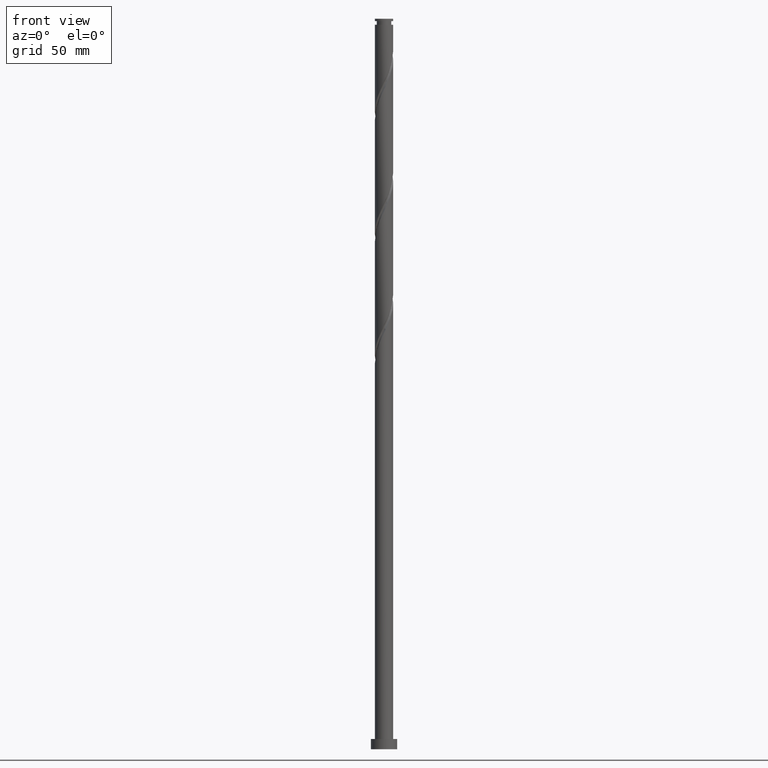
[diagram: clean part render]
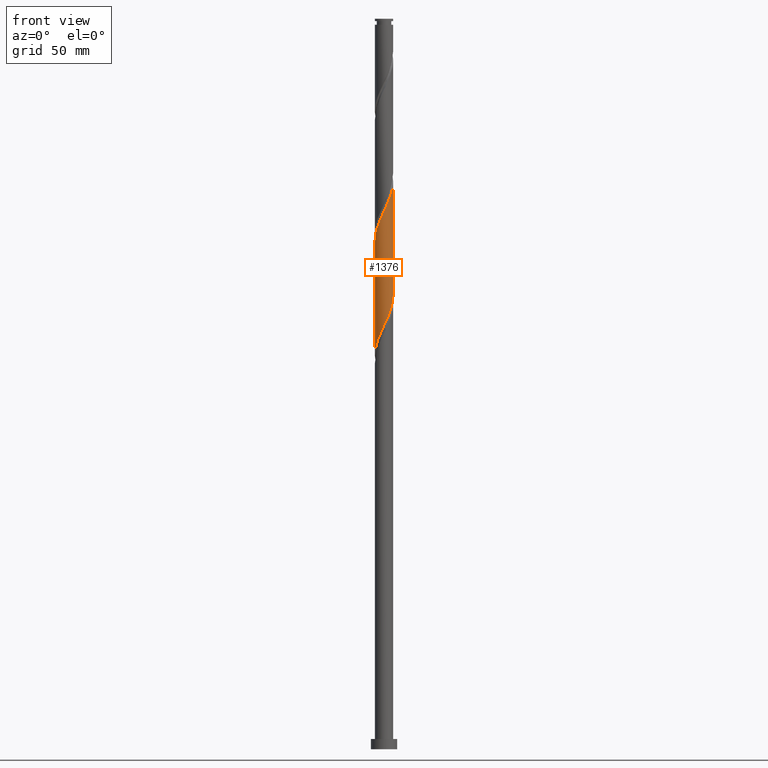
[diagram: same view with one face highlighted and labeled with its STEP entity id]
A machine part, front view. The second image highlights one B-rep face of the part: STEP entity #1376.
In plain terms, the highlighted cylindrical surface (edge-blend (fillet) strip) has radius 6.25 mm, axis along (-0, -0, -1).
Its self-contained STEP definition (entity closure, byte-faithful):
#36 = CARTESIAN_POINT ( 'NONE',  ( -6.250000000000009770, 7.460911258558398260E-15, 347.3798269158335188 ) ) ;
#50 = CARTESIAN_POINT ( 'NONE',  ( 2.368740404023878643, -5.783733128209219920, 295.3491905604970498 ) ) ;
#61 = CARTESIAN_POINT ( 'NONE',  ( 6.125000000000000000, -1.243734296383280258, 308.3700238938303642 ) ) ;
#80 = CARTESIAN_POINT ( 'NONE',  ( -6.125000000000008882, -1.243734296383279592, 350.0366905604970498 ) ) ;
#92 = CARTESIAN_POINT ( 'NONE',  ( -1.194875362925339690, -6.134718646121773311, 365.6616905604970498 ) ) ;
#183 = AXIS2_PLACEMENT_3D ( 'NONE', #384, #1703, #908 ) ;
#212 = CARTESIAN_POINT ( 'NONE',  ( 2.938388396464525876, -5.550432561628093175, 296.6512738938303642 ) ) ;
#221 = CARTESIAN_POINT ( 'NONE',  ( 5.550432561628096728, -2.938388396464535202, 382.5887738938303642 ) ) ;
#236 = CARTESIAN_POINT ( 'NONE',  ( -5.550432561628093175, -2.938388396464526764, 275.8179405604970498 ) ) ;
#242 = CARTESIAN_POINT ( 'NONE',  ( -5.182805627141505944, -3.492996683547016534, 355.2450238938303642 ) ) ;
#264 = CARTESIAN_POINT ( 'NONE',  ( 3.492996683547016090, -5.182805627141505944, 376.0783572271636785 ) ) ;
#315 = VECTOR ( 'NONE', #942, 1000.000000000000000 ) ;
#369 = CARTESIAN_POINT ( 'NONE',  ( 3.451576079800706687, -5.210481989734500274, 297.9533572271637354 ) ) ;
#384 = CARTESIAN_POINT ( 'NONE',  ( 0.000000000000000000, 0.000000000000000000, 500.0000000000000000 ) ) ;
#393 = CARTESIAN_POINT ( 'NONE',  ( -1.846994141945911716, -6.002502863745775130, 286.2346072271637922 ) ) ;
#420 = CARTESIAN_POINT ( 'NONE',  ( 6.250000000000008882, 7.878409165607379030E-15, 389.0464935825002044 ) ) ;
#421 = ORIENTED_EDGE ( 'NONE', *, *, #654, .T. ) ;
#429 = CARTESIAN_POINT ( 'NONE',  ( 4.436994950466251808, -4.401769622496967571, 378.6825238938303642 ) ) ;
#444 = CARTESIAN_POINT ( 'NONE',  ( -6.134718646121763541, -1.194875362925336137, 271.9116905604970498 ) ) ;
#465 = VERTEX_POINT ( 'NONE', #1397 ) ;
#482 = CARTESIAN_POINT ( 'NONE',  ( -6.250000000000009770, 7.460911258558398260E-15, 347.3798269158335188 ) ) ;
#505 = ORIENTED_EDGE ( 'NONE', *, *, #721, .F. ) ;
#548 = CARTESIAN_POINT ( 'NONE',  ( -0.02490806827660287104, -6.249950366853703088, 290.1408572271636785 ) ) ;
#569 = CARTESIAN_POINT ( 'NONE',  ( -4.870531417840910038, -3.964763763136889274, 278.4221072271637354 ) ) ;
#576 = CARTESIAN_POINT ( 'NONE',  ( -0.5906583142674434184, -6.252403597453189299, 366.9637738938305347 ) ) ;
#587 = CARTESIAN_POINT ( 'NONE',  ( -5.526835772425973126, -2.982534884002440823, 353.9429405604971066 ) ) ;
#600 = CARTESIAN_POINT ( 'NONE',  ( -4.436994950466247367, -4.401769622496961354, 279.7241905604970498 ) ) ;
#637 = CARTESIAN_POINT ( 'NONE',  ( -4.003458483091587361, -4.838775481857032545, 281.0262738938304210 ) ) ;
#654 = EDGE_CURVE ( 'NONE', #1277, #756, #1987, .T. ) ;
#681 = CARTESIAN_POINT ( 'NONE',  ( -6.250000000000007994, -0.01245408358914291795, 347.4061804703507619 ) ) ;
#686 = CARTESIAN_POINT ( 'NONE',  ( 5.764669318085869243, -2.414764512974176380, 305.7658572271637922 ) ) ;
#698 = CARTESIAN_POINT ( 'NONE',  ( 1.799092411583232298, -6.017033694790346665, 294.0471072271637354 ) ) ;
#705 = CARTESIAN_POINT ( 'NONE',  ( 2.414764512974176824, -5.764669318085877237, 373.4741905604970498 ) ) ;
#709 = CARTESIAN_POINT ( 'NONE',  ( 6.002502863745776018, -1.846994141945909940, 307.0679405604970498 ) ) ;
#721 = EDGE_CURVE ( 'NONE', #1277, #465, #1353, .T. ) ;
#731 = CARTESIAN_POINT ( 'NONE',  ( 5.210481989734503827, -3.451576079800713792, 381.2866905604970498 ) ) ;
#742 = CARTESIAN_POINT ( 'NONE',  ( 6.250000000000012434, -0.6029988433061194142, 387.7705134770844211 ) ) ;
#753 = CARTESIAN_POINT ( 'NONE',  ( -4.838775481857040539, -4.003458483091592690, 356.5471072271637922 ) ) ;
#756 = VERTEX_POINT ( 'NONE', #1857 ) ;
#783 = CARTESIAN_POINT ( 'NONE',  ( 6.250000000000000000, 7.654042494670957606E-16, 500.0000000000000000 ) ) ;
#803 = CARTESIAN_POINT ( 'NONE',  ( -2.982534884002439490, -5.526835772425963356, 283.6304405604971635 ) ) ;
#819 = CARTESIAN_POINT ( 'NONE',  ( -6.250000000000000000, 0.000000000000000000, 500.0000000000000000 ) ) ;
#852 = CARTESIAN_POINT ( 'NONE',  ( 5.182805627141495286, -3.492996683547016090, 303.1616905604970498 ) ) ;
#868 = FACE_OUTER_BOUND ( 'NONE', #1906, .T. ) ;
#872 = CARTESIAN_POINT ( 'NONE',  ( 1.243734296383278926, -6.125000000000008882, 370.8700238938303642 ) ) ;
#876 = CARTESIAN_POINT ( 'NONE',  ( 6.250000000000000888, -0.01245408358914403164, 311.0005339839765952 ) ) ;
#893 = CARTESIAN_POINT ( 'NONE',  ( 0.6404744508206466902, -6.247497136254231975, 369.5679405604970498 ) ) ;
#908 = DIRECTION ( 'NONE',  ( -1.000000000000000000, 0.000000000000000000, 0.000000000000000000 ) ) ;
#911 = CARTESIAN_POINT ( 'NONE',  ( -6.002502863745784900, -1.846994141945912382, 351.3387738938304778 ) ) ;
#942 = DIRECTION ( 'NONE',  ( -0.000000000000000000, -0.000000000000000000, -1.000000000000000000 ) ) ;
#1042 = CARTESIAN_POINT ( 'NONE',  ( -2.414764512974176380, -5.764669318085871019, 284.9325238938303642 ) ) ;
#1066 = CARTESIAN_POINT ( 'NONE',  ( -5.783733128209219920, -2.368740404023878643, 274.5158572271637354 ) ) ;
#1175 = DIRECTION ( 'NONE',  ( -0.000000000000000000, -0.000000000000000000, -1.000000000000000000 ) ) ;
#1199 = CARTESIAN_POINT ( 'NONE',  ( 1.194875362925335915, -6.134718646121764429, 292.7450238938303642 ) ) ;
#1238 = CARTESIAN_POINT ( 'NONE',  ( -2.368740404023883084, -5.783733128209227026, 363.0575238938303642 ) ) ;
#1242 = CARTESIAN_POINT ( 'NONE',  ( -6.017033694790346665, -1.799092411583232520, 273.2137738938304210 ) ) ;
#1256 = LINE ( 'NONE', #783, #315 ) ;
#1268 = VERTEX_POINT ( 'NONE', #1343 ) ;
#1277 = VERTEX_POINT ( 'NONE', #482 ) ;
#1334 = CARTESIAN_POINT ( 'NONE',  ( -6.249950366853710193, -0.02490806827660202449, 347.4325238938303642 ) ) ;
#1338 = CARTESIAN_POINT ( 'NONE',  ( 4.838775481857031657, -4.003458483091587361, 301.8596072271638491 ) ) ;
#1343 = CARTESIAN_POINT ( 'NONE',  ( 6.250000000000001776, 6.297881374636269097E-15, 311.0268875384938951 ) ) ;
#1353 =( BOUNDED_CURVE ( )  B_SPLINE_CURVE ( 2, ( #36, #681, #1334, #1544, #80, #911, #1847, #587, #242, #753, #1555, #1715, #1888, #1676, #1238, #2008, #92, #576, #1877, #893, #872, #2033, #705, #1398, #264, #2051, #429, #1531, #731, #221, #1522, #2021, #2042, #742, #420 ),
 .UNSPECIFIED., .F., .T. ) 
 B_SPLINE_CURVE_WITH_KNOTS ( ( 3, 2, 2, 2, 2, 2, 2, 2, 2, 2, 2, 2, 2, 2, 2, 2, 2, 3 ),
 ( 0.3045286902180873723, 0.3046875000000000000, 0.3125000000000000000, 0.3203125000000000000, 0.3281250000000000000, 0.3359375000000000000, 0.3437500000000000000, 0.3515625000000000000, 0.3593750000000000000, 0.3671875000000000000, 0.3750000000000000000, 0.3828125000000000000, 0.3906250000000000000, 0.3984375000000000000, 0.4062500000000000000, 0.4140625000000000000, 0.4218750000000000000, 0.4295286902180874278 ),
 .UNSPECIFIED. ) 
 CURVE ( )  GEOMETRIC_REPRESENTATION_ITEM ( )  RATIONAL_B_SPLINE_CURVE ( ( 0.9089165573359504480, 0.9090019243628550960, 0.9090909090909468082, 0.9047133878838528043, 0.9090909090909468082, 0.9047133878838528043, 0.9090909090909468082, 0.9047133878838528043, 0.9090909090909468082, 0.9047133878838528043, 0.9090909090909468082, 0.9047133878838528043, 0.9090909090909468082, 0.9047133878838528043, 0.9090909090909468082, 0.9047133878838528043, 0.9090909090909468082, 0.9047133878838528043, 0.9090909090909468082, 0.9047133878838528043, 0.9090909090909468082, 0.9047133878838528043, 0.9090909090909468082, 0.9047133878838528043, 0.9090909090909468082, 0.9047133878838528043, 0.9090909090909468082, 0.9047133878838528043, 0.9090909090909468082, 0.9047133878838528043, 0.9090909090909468082, 0.9047133878838528043, 0.9090909090909468082, 0.9048023726119445165, 0.9089165573359504480 ) ) 
 REPRESENTATION_ITEM ( '' )  );
#1361 = CARTESIAN_POINT ( 'NONE',  ( 3.964763763136884833, -4.870531417840912702, 299.2554405604971066 ) ) ;
#1368 = VECTOR ( 'NONE', #1175, 1000.000000000000000 ) ;
#1376 = ADVANCED_FACE ( 'NONE', ( #868 ), #1517, .T. ) ;
#1384 = CARTESIAN_POINT ( 'NONE',  ( -6.250000000000008882, -0.6029988433061029829, 270.6362009772433339 ) ) ;
#1397 = CARTESIAN_POINT ( 'NONE',  ( 6.250000000000008882, 7.878409165607379030E-15, 389.0464935825002044 ) ) ;
#1398 = CARTESIAN_POINT ( 'NONE',  ( 2.982534884002440823, -5.526835772425973126, 374.7762738938303642 ) ) ;
#1421 = ORIENTED_EDGE ( 'NONE', *, *, #1970, .F. ) ;
#1452 = CARTESIAN_POINT ( 'NONE',  ( -3.492996683547012982, -5.182805627141497062, 282.3283572271638491 ) ) ;
#1517 = CYLINDRICAL_SURFACE ( 'NONE', #183, 6.250000000000000000 ) ;
#1522 = CARTESIAN_POINT ( 'NONE',  ( 5.783733128209226138, -2.368740404023883084, 383.8908572271637354 ) ) ;
#1525 = CARTESIAN_POINT ( 'NONE',  ( 6.249950366853703088, -0.02490806827660308961, 310.9741905604970498 ) ) ;
#1531 = CARTESIAN_POINT ( 'NONE',  ( 4.870531417840913591, -3.964763763136895491, 379.9846072271637922 ) ) ;
#1544 = CARTESIAN_POINT ( 'NONE',  ( -6.247497136254231975, -0.6404744508206471343, 348.7346072271637354 ) ) ;
#1555 = CARTESIAN_POINT ( 'NONE',  ( -4.401769622496965795, -4.436994950466251808, 357.8491905604969929 ) ) ;
#1601 = ORIENTED_EDGE ( 'NONE', *, *, #1656, .F. ) ;
#1621 = CARTESIAN_POINT ( 'NONE',  ( 6.247497136254223093, -0.6404744508206514642, 309.6721072271637354 ) ) ;
#1656 = EDGE_CURVE ( 'NONE', #1268, #756, #1884, .T. ) ;
#1668 = CARTESIAN_POINT ( 'NONE',  ( 5.526835772425963356, -2.982534884002439490, 304.4637738938303642 ) ) ;
#1676 = CARTESIAN_POINT ( 'NONE',  ( -2.938388396464533425, -5.550432561628098505, 361.7554405604970498 ) ) ;
#1689 = CARTESIAN_POINT ( 'NONE',  ( -0.6404744508206484666, -6.247497136254223982, 288.8387738938304778 ) ) ;
#1703 = DIRECTION ( 'NONE',  ( -0.000000000000000000, -0.000000000000000000, -1.000000000000000000 ) ) ;
#1715 = CARTESIAN_POINT ( 'NONE',  ( -3.964763763136895491, -4.870531417840916255, 359.1512738938303642 ) ) ;
#1827 = CARTESIAN_POINT ( 'NONE',  ( 6.250000000000001776, 6.297881374636269097E-15, 311.0268875384938951 ) ) ;
#1847 = CARTESIAN_POINT ( 'NONE',  ( -5.764669318085877237, -2.414764512974176824, 352.6408572271636785 ) ) ;
#1851 = CARTESIAN_POINT ( 'NONE',  ( -1.243734296383279592, -6.125000000000000000, 287.5366905604971066 ) ) ;
#1857 = CARTESIAN_POINT ( 'NONE',  ( -6.250000000000000000, 4.652678684671355599E-14, 269.3602208718271527 ) ) ;
#1877 = CARTESIAN_POINT ( 'NONE',  ( 0.02490806827660032446, -6.249950366853710193, 368.2658572271637922 ) ) ;
#1884 =( BOUNDED_CURVE ( )  B_SPLINE_CURVE ( 2, ( #1827, #876, #1525, #1621, #61, #709, #686, #1668, #852, #1338, #1990, #1361, #369, #212, #50, #698, #1199, #2093, #548, #1689, #1851, #393, #1042, #803, #1452, #637, #600, #569, #2055, #236, #1066, #1242, #444, #1384, #2036 ),
 .UNSPECIFIED., .F., .T. ) 
 B_SPLINE_CURVE_WITH_KNOTS ( ( 3, 2, 2, 2, 2, 2, 2, 2, 2, 2, 2, 2, 2, 2, 2, 2, 2, 3 ),
 ( 0.8045286902180873723, 0.8046875000000000000, 0.8125000000000000000, 0.8203125000000000000, 0.8281250000000000000, 0.8359375000000000000, 0.8437500000000000000, 0.8515625000000000000, 0.8593750000000000000, 0.8671875000000000000, 0.8750000000000000000, 0.8828125000000000000, 0.8906250000000000000, 0.8984375000000000000, 0.9062500000000000000, 0.9140625000000000000, 0.9218750000000000000, 0.9295286902180875943 ),
 .UNSPECIFIED. ) 
 CURVE ( )  GEOMETRIC_REPRESENTATION_ITEM ( )  RATIONAL_B_SPLINE_CURVE ( ( 0.9089165573359445638, 0.9090019243628492118, 0.9090909090909409240, 0.9047133878838470311, 0.9090909090909409240, 0.9047133878838470311, 0.9090909090909409240, 0.9047133878838470311, 0.9090909090909409240, 0.9047133878838470311, 0.9090909090909409240, 0.9047133878838470311, 0.9090909090909409240, 0.9047133878838470311, 0.9090909090909409240, 0.9047133878838470311, 0.9090909090909409240, 0.9047133878838470311, 0.9090909090909409240, 0.9047133878838470311, 0.9090909090909409240, 0.9047133878838470311, 0.9090909090909409240, 0.9047133878838470311, 0.9090909090909409240, 0.9047133878838470311, 0.9090909090909409240, 0.9047133878838470311, 0.9090909090909409240, 0.9047133878838470311, 0.9090909090909409240, 0.9047133878838470311, 0.9090909090909409240, 0.9048023726119386323, 0.9089165573359447858 ) ) 
 REPRESENTATION_ITEM ( '' )  );
#1888 = CARTESIAN_POINT ( 'NONE',  ( -3.451576079800712904, -5.210481989734503827, 360.4533572271637354 ) ) ;
#1906 = EDGE_LOOP ( 'NONE', ( #1421, #505, #421, #1601 ) ) ;
#1970 = EDGE_CURVE ( 'NONE', #465, #1268, #1256, .T. ) ;
#1987 = LINE ( 'NONE', #819, #1368 ) ;
#1990 = CARTESIAN_POINT ( 'NONE',  ( 4.401769622496961354, -4.436994950466247367, 300.5575238938304210 ) ) ;
#2008 = CARTESIAN_POINT ( 'NONE',  ( -1.799092411583237183, -6.017033694790354659, 364.3596072271637354 ) ) ;
#2021 = CARTESIAN_POINT ( 'NONE',  ( 6.017033694790355547, -1.799092411583237183, 385.1929405604970498 ) ) ;
#2033 = CARTESIAN_POINT ( 'NONE',  ( 1.846994141945911938, -6.002502863745784900, 372.1721072271636785 ) ) ;
#2036 = CARTESIAN_POINT ( 'NONE',  ( -6.250000000000000000, 4.652678684671355599E-14, 269.3602208718271527 ) ) ;
#2042 = CARTESIAN_POINT ( 'NONE',  ( 6.134718646121773311, -1.194875362925343243, 386.4950238938303642 ) ) ;
#2051 = CARTESIAN_POINT ( 'NONE',  ( 4.003458483091592690, -4.838775481857040539, 377.3804405604971066 ) ) ;
#2055 = CARTESIAN_POINT ( 'NONE',  ( -5.210481989734499386, -3.451576079800707131, 277.1200238938303642 ) ) ;
#2093 = CARTESIAN_POINT ( 'NONE',  ( 0.5906583142674398657, -6.252403597453183082, 291.4429405604971066 ) ) ;